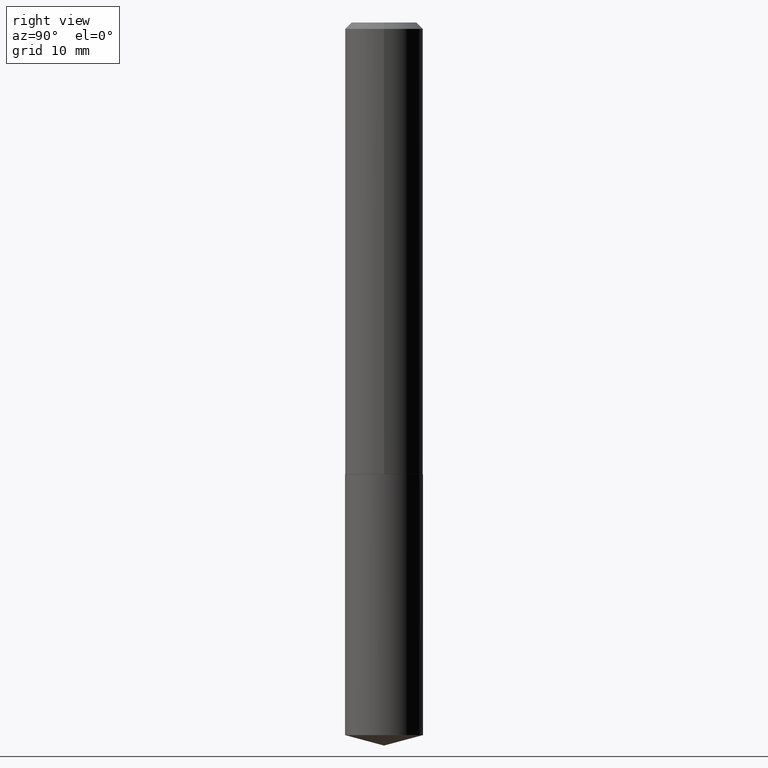
[diagram: clean part render]
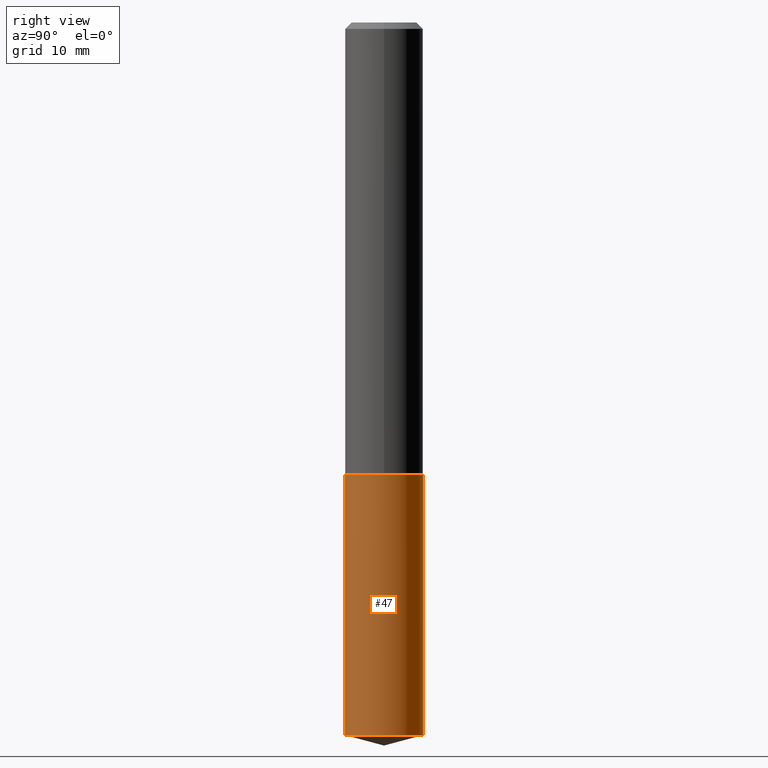
[diagram: same view with one face highlighted and labeled with its STEP entity id]
A machine part, right view. The second image highlights one B-rep face of the part: STEP entity #47.
In plain terms, the highlighted cylindrical surface (partial cylindrical patch) has radius 4.8006 mm, axis along (-0, 0, 1).
Its self-contained STEP definition (entity closure, byte-faithful):
#4 = VERTEX_POINT ( 'NONE', #370 ) ;
#16 = CARTESIAN_POINT ( 'NONE',  ( 8.444674337190745942E-29, -1.205721276165754944E-14, -3.453257602630517731 ) ) ;
#19 = DIRECTION ( 'NONE',  ( -2.445342716562640584E-29, 3.491661906359135627E-15, 1.000000000000000000 ) ) ;
#22 = DIRECTION ( 'NONE',  ( -2.445342716562640584E-29, 3.491661906359135627E-15, 1.000000000000000000 ) ) ;
#24 = VECTOR ( 'NONE', #291, 39.37007874015748143 ) ;
#44 = CARTESIAN_POINT ( 'NONE',  ( 5.353131216739262468E-29, -7.642852650727643969E-15, -2.188999999999999613 ) ) ;
#47 = ADVANCED_FACE ( 'NONE', ( #372 ), #104, .T. ) ;
#51 = LINE ( 'NONE', #172, #24 ) ;
#82 = CARTESIAN_POINT ( 'NONE',  ( -1.319779946082650387E-15, -0.1890000000000076341, -2.188999999999999169 ) ) ;
#104 = CYLINDRICAL_SURFACE ( 'NONE', #349, 0.1889999999999999736 ) ;
#113 = CIRCLE ( 'NONE', #160, 0.1889999999999999736 ) ;
#128 = EDGE_CURVE ( 'NONE', #305, #4, #141, .T. ) ;
#130 = ORIENTED_EDGE ( 'NONE', *, *, #216, .T. ) ;
#140 = CARTESIAN_POINT ( 'NONE',  ( 1.342925770586672783E-15, 0.1889999999999878166, -3.453257602630518175 ) ) ;
#141 = LINE ( 'NONE', #376, #146 ) ;
#143 = DIRECTION ( 'NONE',  ( -2.445342716562640584E-29, 3.491661906359135627E-15, 1.000000000000000000 ) ) ;
#146 = VECTOR ( 'NONE', #22, 39.37007874015748143 ) ;
#149 = EDGE_CURVE ( 'NONE', #215, #4, #113, .T. ) ;
#160 = AXIS2_PLACEMENT_3D ( 'NONE', #293, #143, #239 ) ;
#166 = DIRECTION ( 'NONE',  ( -2.445342716562640584E-29, 3.491661906359135627E-15, 1.000000000000000000 ) ) ;
#172 = CARTESIAN_POINT ( 'NONE',  ( -1.319779946082650387E-15, -0.1890000000000076341, -2.188999999999999169 ) ) ;
#177 = CIRCLE ( 'NONE', #322, 0.1889999999999999736 ) ;
#189 = ORIENTED_EDGE ( 'NONE', *, *, #245, .F. ) ;
#215 = VERTEX_POINT ( 'NONE', #82 ) ;
#216 = EDGE_CURVE ( 'NONE', #344, #305, #177, .T. ) ;
#227 = CARTESIAN_POINT ( 'NONE',  ( -1.319779946082618833E-15, -0.1890000000000119362, -3.453257602630517287 ) ) ;
#236 = DIRECTION ( 'NONE',  ( -6.982962677686265922E-15, -1.000000000000000000, 2.890844437739961472E-15 ) ) ;
#239 = DIRECTION ( 'NONE',  ( -6.982962677686265922E-15, -1.000000000000000000, 2.890844437739961472E-15 ) ) ;
#245 = EDGE_CURVE ( 'NONE', #344, #215, #51, .T. ) ;
#276 = ORIENTED_EDGE ( 'NONE', *, *, #128, .T. ) ;
#287 = DIRECTION ( 'NONE',  ( -6.982962677686265922E-15, -1.000000000000000000, 2.890844437739961472E-15 ) ) ;
#291 = DIRECTION ( 'NONE',  ( -2.445342716562640584E-29, 3.491661906359135627E-15, 1.000000000000000000 ) ) ;
#293 = CARTESIAN_POINT ( 'NONE',  ( 5.353131216739262468E-29, -7.642852650727643969E-15, -2.188999999999999613 ) ) ;
#305 = VERTEX_POINT ( 'NONE', #140 ) ;
#322 = AXIS2_PLACEMENT_3D ( 'NONE', #16, #19, #236 ) ;
#332 = ORIENTED_EDGE ( 'NONE', *, *, #149, .F. ) ;
#344 = VERTEX_POINT ( 'NONE', #227 ) ;
#349 = AXIS2_PLACEMENT_3D ( 'NONE', #44, #166, #287 ) ;
#365 = EDGE_LOOP ( 'NONE', ( #130, #276, #332, #189 ) ) ;
#370 = CARTESIAN_POINT ( 'NONE',  ( 1.342925770586673769E-15, 0.1889999999999923408, -2.189000000000000057 ) ) ;
#372 = FACE_OUTER_BOUND ( 'NONE', #365, .T. ) ;
#376 = CARTESIAN_POINT ( 'NONE',  ( 1.342925770586642609E-15, 0.1889999999999923408, -2.189000000000000057 ) ) ;